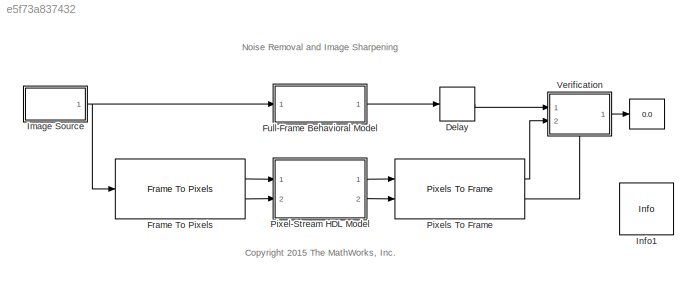
MODEL slx_e5f73a837432
KIND model
CONFIG AbsTol = auto
CONFIG FixedStep = auto
CONFIG MaxStep = auto
CONFIG MinStep = auto
CONFIG RelTol = 1e-3
CONFIG SampleTimeConstraint = Unconstrained
CONFIG Solver = FixedStepDiscrete
CONFIG SolverMode = SingleTasking
CONFIG SolverName = FixedStepDiscrete
CONFIG StartTime = 0.0
CONFIG StopTime = 402*324*10
BLOCK [Display]  
  Decimation = 1
  Ports = [1]
BLOCK [Delay] Delay
  DelayLength = 1
  InitialCondition = 0
  InputPortMap = u0
  Ports = [1, 1]
BLOCK [Reference] Frame To Pixels  REF=visionhdlio/Frame To Pixels
  Ports = [1, 2]
  SourceBlock = visionhdlio/Frame To Pixels
  SourceType = Frame To Pixels
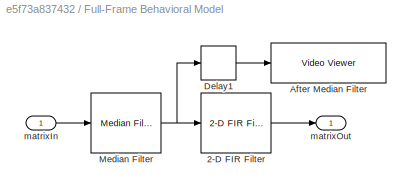
BLOCK [SubSystem] Full-Frame Behavioral Model
  Ports = [1, 1]
  RequestExecContextInheritance = off
  Variant = off
BLOCK [Reference] Full-Frame Behavioral Model/2-D FIR Filter  REF=visionfilter/2-D FIR Filter
  Ports = [1, 1]
  SourceBlock = visionfilter/2-D FIR Filter
  SourceType = 2-D FIR Filter
BLOCK [Reference] Full-Frame Behavioral Model/After Median Filter  REF=visionsinks/Video Viewer
  Ports = [1]
  SourceBlock = visionsinks/Video Viewer
  SourceType = Video Viewer
  UserDataPersistent = on
BLOCK [Delay] Full-Frame Behavioral Model/Delay1
  DelayLength = 1
  InitialCondition = 0
  InputPortMap = u0
  Ports = [1, 1]
BLOCK [Reference] Full-Frame Behavioral Model/Median Filter  REF=visionanalysis/Median Filter
  Ports = [1, 1]
  SourceBlock = visionanalysis/Median Filter
  SourceType = Median Filter
BLOCK [Inport] Full-Frame Behavioral Model/matrixIn
  IconDisplay = Port number
BLOCK [Outport] Full-Frame Behavioral Model/matrixOut
  IconDisplay = Port number
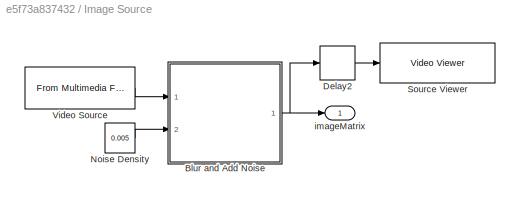
BLOCK [SubSystem] Image Source
  Ports = [0, 1]
  RequestExecContextInheritance = off
  Variant = off
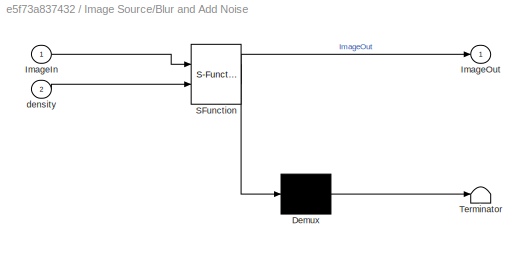
BLOCK [SubSystem] Image Source/Blur and Add Noise
  ErrorFcn = Stateflow.Translate.translate
  PermitHierarchicalResolution = ExplicitOnly
  Ports = [2, 1]
  RequestExecContextInheritance = off
  SFBlockType = MATLAB Function
  TreatAsAtomicUnit = on
  Variant = off
BLOCK [Demux] Image Source/Blur and Add Noise/ Demux 
  Outputs = 1
  Ports = [1, 1]
BLOCK [S-Function] Image Source/Blur and Add Noise/ SFunction 
  EnableBusSupport = off
  FunctionName = sf_sfun
  PortCounts = [2 2]
  Ports = [2, 2]
  SFunctionDeploymentMode = off
  Tag = Stateflow S-Function NoiseRemovalAndSharpeningHDLExample 2
BLOCK [Terminator] Image Source/Blur and Add Noise/ Terminator 
BLOCK [Inport] Image Source/Blur and Add Noise/ImageIn
  IconDisplay = Port number
BLOCK [Outport] Image Source/Blur and Add Noise/ImageOut
  IconDisplay = Port number
BLOCK [Inport] Image Source/Blur and Add Noise/density
  IconDisplay = Port number
  Port = 2
BLOCK [Delay] Image Source/Delay2
  DelayLength = 1
  InitialCondition = 0
  InputPortMap = u0
  Ports = [1, 1]
BLOCK [Constant] Image Source/Noise Density
  OutDataTypeStr = double
  SampleTime = 402*324
  Value = 0.005
BLOCK [Reference] Image Source/Source Viewer  REF=visionsinks/Video Viewer
  Ports = [1]
  SourceBlock = visionsinks/Video Viewer
  SourceType = Video Viewer
  UserDataPersistent = on
BLOCK [Reference] Image Source/Video Source  REF=dspvision/From Multimedia File
  Ports = [0, 1]
  SourceBlock = dspvision/From Multimedia File
  SourceType = From Multimedia File
BLOCK [Outport] Image Source/imageMatrix
  IconDisplay = Port number
BLOCK [Reference] Info1  REF=vipmisc/Info
  Ports = []
  SourceBlock = vipmisc/Info
  SourceType = Info
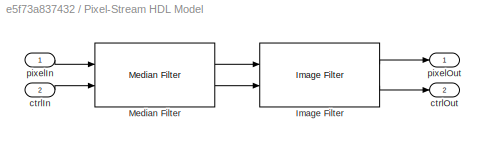
BLOCK [SubSystem] Pixel-Stream HDL Model
  Ports = [2, 2]
  RequestExecContextInheritance = off
  Variant = off
BLOCK [Reference] Pixel-Stream HDL Model/Image Filter  REF=visionhdlfilter/Image Filter
  Ports = [2, 2]
  SourceBlock = visionhdlfilter/Image Filter
  SourceType = Image Filter
BLOCK [Reference] Pixel-Stream HDL Model/Median Filter  REF=visionhdlfilter/Median Filter
  Ports = [2, 2]
  SourceBlock = visionhdlfilter/Median Filter
  SourceType = Median Filter
BLOCK [Inport] Pixel-Stream HDL Model/ctrlIn
  IconDisplay = Port number
  Port = 2
BLOCK [Outport] Pixel-Stream HDL Model/ctrlOut
  IconDisplay = Port number
  Port = 2
BLOCK [Inport] Pixel-Stream HDL Model/pixelIn
  IconDisplay = Port number
BLOCK [Outport] Pixel-Stream HDL Model/pixelOut
  IconDisplay = Port number
BLOCK [Reference] Pixels To Frame  REF=visionhdlio/Pixels To Frame
  Ports = [2, 2]
  SourceBlock = visionhdlio/Pixels To Frame
  SourceType = Pixels To Frame
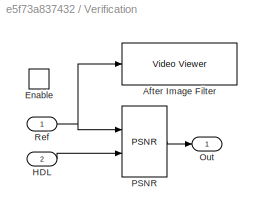
BLOCK [SubSystem] Verification
  Ports = [2, 1, 1]
  RequestExecContextInheritance = off
  Variant = off
BLOCK [Reference] Verification/After Image Filter   REF=visionsinks/Video Viewer
  Ports = [1]
  SourceBlock = visionsinks/Video Viewer
  SourceType = Video Viewer
  UserDataPersistent = on
BLOCK [EnablePort] Verification/Enable
  Ports = []
BLOCK [Inport] Verification/HDL
  IconDisplay = Port number
  Port = 2
BLOCK [Outport] Verification/Out
  IconDisplay = Port number
BLOCK [Reference] Verification/PSNR  REF=visionstatistics/PSNR
  Ports = [2, 1]
  SourceBlock = visionstatistics/PSNR
  SourceType = PSNR
BLOCK [Inport] Verification/Ref
  IconDisplay = Port number
ANNOTATION (root): Noise Removal and Image Sharpening
ANNOTATION (root): <copyright redacted>
LINE Delay:1 -> Verification:1
LINE Frame To Pixels:1 -> Pixel-Stream HDL Model:1
LINE Frame To Pixels:2 -> Pixel-Stream HDL Model:2
LINE Full-Frame Behavioral Model/2-D FIR Filter:1 -> Full-Frame Behavioral Model/matrixOut:1
LINE Full-Frame Behavioral Model/Delay1:1 -> Full-Frame Behavioral Model/After Median Filter:1
NET Full-Frame Behavioral Model/Median Filter:1 -> Full-Frame Behavioral Model/2-D FIR Filter:1, Full-Frame Behavioral Model/Delay1:1
LINE Full-Frame Behavioral Model/matrixIn:1 -> Full-Frame Behavioral Model/Median Filter:1
LINE Full-Frame Behavioral Model:1 -> Delay:1
NET Image Source/Blur and Add Noise:1 -> Image Source/Delay2:1, Image Source/imageMatrix:1
LINE Image Source/Delay2:1 -> Image Source/Source Viewer:1
LINE Image Source/Noise Density:1 -> Image Source/Blur and Add Noise:2
LINE Image Source/Video Source:1 -> Image Source/Blur and Add Noise:1
NET Image Source:1 -> Frame To Pixels:1, Full-Frame Behavioral Model:1
LINE Pixel-Stream HDL Model/Image Filter:1 -> Pixel-Stream HDL Model/pixelOut:1
LINE Pixel-Stream HDL Model/Image Filter:2 -> Pixel-Stream HDL Model/ctrlOut:1
LINE Pixel-Stream HDL Model/Median Filter:1 -> Pixel-Stream HDL Model/Image Filter:1
LINE Pixel-Stream HDL Model/Median Filter:2 -> Pixel-Stream HDL Model/Image Filter:2
LINE Pixel-Stream HDL Model/ctrlIn:1 -> Pixel-Stream HDL Model/Median Filter:2
LINE Pixel-Stream HDL Model/pixelIn:1 -> Pixel-Stream HDL Model/Median Filter:1
LINE Pixel-Stream HDL Model:1 -> Pixels To Frame:1
LINE Pixel-Stream HDL Model:2 -> Pixels To Frame:2
LINE Pixels To Frame:1 -> Verification:2
LINE Pixels To Frame:2 -> Verification:enable
LINE Verification/HDL:1 -> Verification/PSNR:2
LINE Verification/PSNR:1 -> Verification/Out:1
NET Verification/Ref:1 -> Verification/After Image Filter :1, Verification/PSNR:1
LINE Verification:1 ->  :1
note: NET lines group one-source signal fan-out (src -> all destinations, sorted); 1:1 wires keep LINE
CHART Image Source/Blur and Add Noise states=1 transitions=1
  STATE_LABEL 'eML_blk_kernel()'
  STATE_LABEL "SCRIPT:\n\nfunction ImageOut = fcn(ImageIn, density)\t\n    ImageOut = cast(zeros(size(ImageIn)),'like', uint8(0)); \n\tcoder.extrinsic('imnoise'); \n    coeff = fspecial('average',[3 3]);\n    ImageBlur = imfilter(ImageIn,coeff);\n\tImageOut = imnoise(ImageBlur,'salt & pepper',density);\n    "
